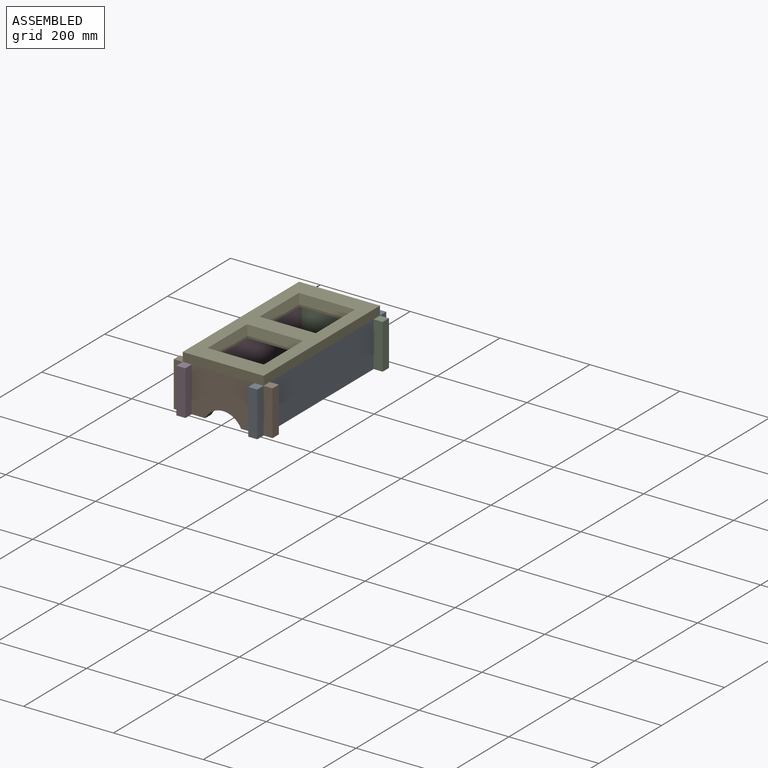
[diagram: assembled view]
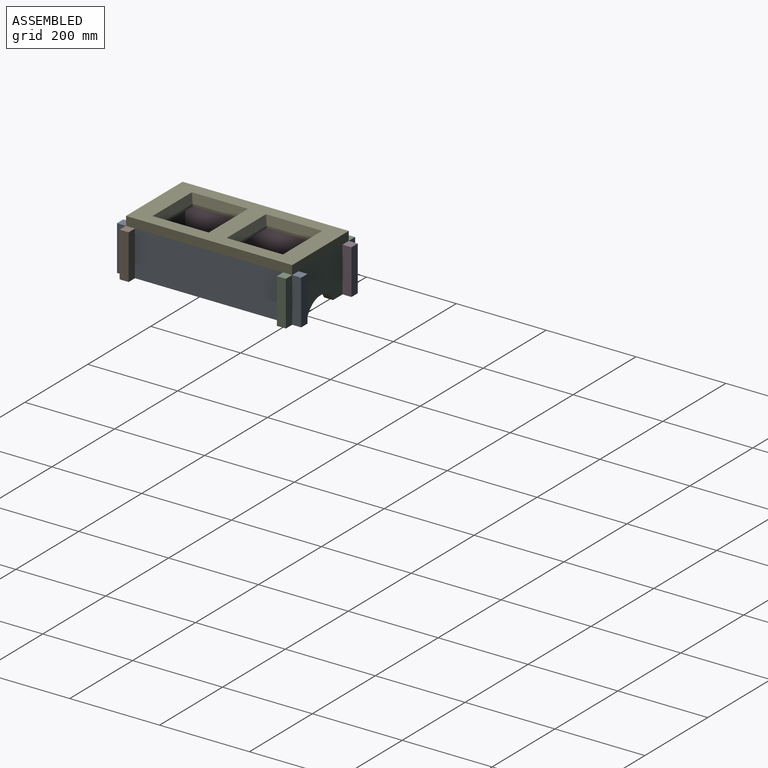
[diagram: assembled view, second angle]
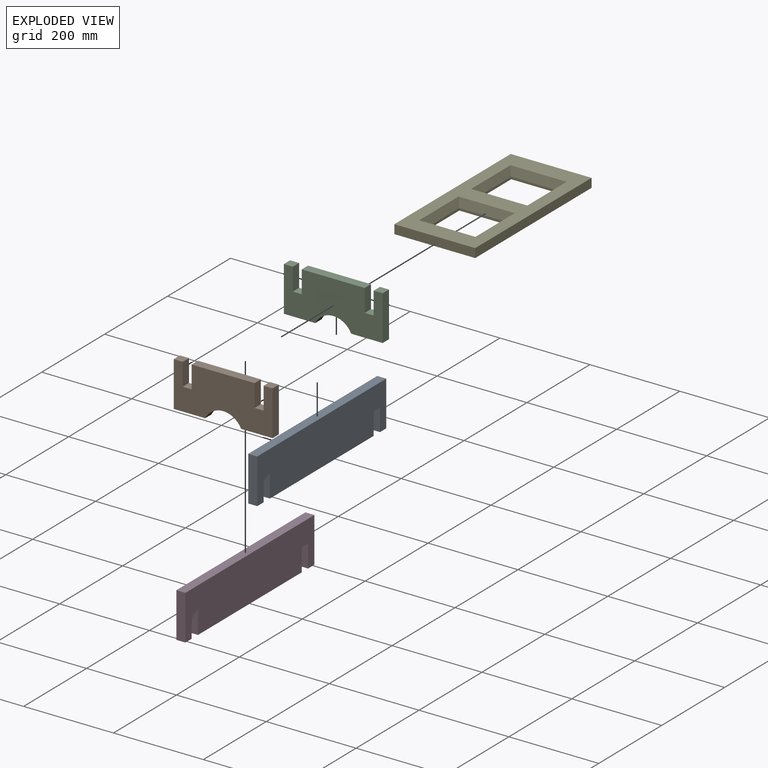
[diagram: exploded view]
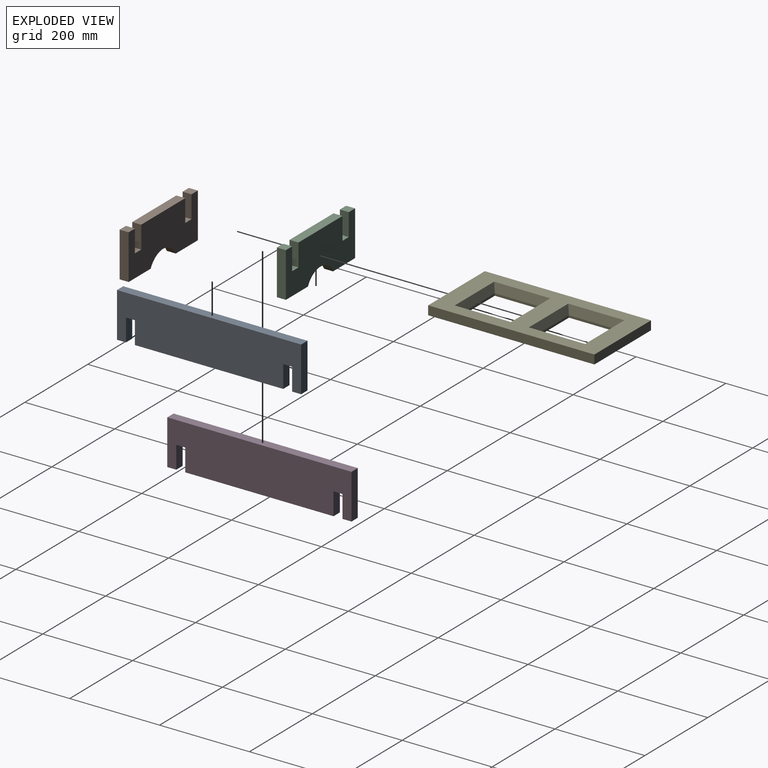
[diagram: exploded view, second angle]
ASSEMBLY  parts=5 mates=4
PART A: 14 faces, bbox 410x20x100 mm
  f0: plane 50x20mm, normal (1,0,0), area 1000mm2, adj f1,f11,f12,f13
  f1: plane 20x20mm, normal (0,0,-1), area 400mm2, adj f0,f2,f12,f13
  f2: plane 50x20mm, normal (-1,0,0), area 1000mm2, adj f1,f3,f12,f13
  f3: plane 330x20mm, normal (0,0,-1), area 6600mm2, adj f2,f4,f12,f13
  f4: plane 50x20mm, normal (1,0,0), area 1000mm2, adj f3,f5,f12,f13
  f5: plane 20x20mm, normal (0,0,-1), area 400mm2, adj f4,f6,f12,f13
  f6: plane 50x20mm, normal (-1,0,0), area 1000mm2, adj f5,f7,f12,f13
  f7: plane 20x20mm, normal (0,0,-1), area 400mm2, adj f6,f8,f12,f13
  f8: plane 100x20mm, normal (1,0,0), area 2000mm2, adj f7,f9,f12,f13
  f9: plane 410x20mm, normal (0,0,1), area 8200mm2, adj f8,f10,f12,f13
  f10: plane 100x20mm, normal (-1,0,0), area 2000mm2, adj f9,f11,f12,f13
  f11: plane 20x20mm, normal (0,0,-1), area 400mm2, adj f0,f10,f12,f13
  f12: plane 410x100mm, normal (0,-1,0), area 39000mm2, adj f0,f1,f2,f3,f4,f5,f6,f7
  f13: plane 410x100mm, normal (0,1,0), area 39000mm2, adj f0,f1,f2,f3,f4,f5,f6,f7
PART B: 16 faces, bbox 220x20x100 mm
  f0: plane 50x20mm, normal (1,0,0), area 1000mm2, adj f1,f13,f14,f15
  f1: plane 20x20mm, normal (0,0,1), area 400mm2, adj f0,f2,f14,f15
  f2: plane 100x20mm, normal (-1,0,0), area 2000mm2, adj f1,f3,f14,f15
  f3: plane 70x20mm, normal (0,0,-1), area 1400mm2, adj f2,f4,f14,f15
  f4: cylinder r=44.5mm len=80mm, axis (0,1,0), area 1988.6mm2, adj f3,f5,f14,f15
  f5: plane 70x20mm, normal (0,0,-1), area 1400mm2, adj f4,f6,f14,f15
  f6: plane 100x20mm, normal (1,0,0), area 2000mm2, adj f5,f7,f14,f15
  f7: plane 20x20mm, normal (0,0,1), area 400mm2, adj f6,f8,f14,f15
  f8: plane 50x20mm, normal (-1,0,0), area 1000mm2, adj f7,f9,f14,f15
  f9: plane 20x20mm, normal (0,0,1), area 400mm2, adj f8,f10,f14,f15
  f10: plane 50x20mm, normal (1,0,0), area 1000mm2, adj f9,f11,f14,f15
  f11: plane 140x20mm, normal (0,0,1), area 2800mm2, adj f10,f12,f14,f15
  f12: plane 50x20mm, normal (-1,0,0), area 1000mm2, adj f11,f13,f14,f15
  f13: plane 20x20mm, normal (0,0,1), area 400mm2, adj f0,f12,f14,f15
  f14: plane 220x100mm, normal (0,-1,0), area 18567.7mm2, adj f0,f1,f2,f3,f4,f5,f6,f7
  f15: plane 220x100mm, normal (0,1,0), area 18567.7mm2, adj f0,f1,f2,f3,f4,f5,f6,f7
PART C: same geometry as B
PART D: same geometry as A
PART E: 29 faces, bbox 370x180x25 mm
  f0: plane 370x180mm, normal (0,0,-1), area 20400mm2, adj f1,f2,f3,f4,f21,f22,f23,f25
  f1: plane 180x20mm, normal (-1,0,0), area 3600mm2, adj f0,f2,f4,f5
  f2: plane 370x20mm, normal (0,-1,0), area 7400mm2, adj f0,f1,f3,f5
  f3: plane 180x20mm, normal (1,0,0), area 3600mm2, adj f0,f2,f4,f5
  f4: plane 370x20mm, normal (0,1,0), area 7400mm2, adj f0,f1,f3,f5
  f5: plane 370x180mm, normal (0,0,1), area 35350mm2, adj f1,f2,f3,f4,f6,f7,f8,f9
  f6: plane 125x20mm, normal (-0.97,0,0.24), area 2473.7mm2, adj f5,f7,f8,f14
  f7: plane 125x20mm, normal (0,-0.97,0.24), area 2473.7mm2, adj f5,f6,f9,f14
  f8: plane 125x20mm, normal (0,0.97,0.24), area 2473.7mm2, adj f5,f6,f9,f14
  f9: plane 125x20mm, normal (0.97,0,0.24), area 2473.7mm2, adj f5,f7,f8,f14
  f10: plane 125x20mm, normal (0,-0.97,0.24), area 2473.7mm2, adj f5,f11,f12,f28
  f11: plane 125x20mm, normal (0.97,0,0.24), area 2473.7mm2, adj f5,f10,f13,f28
  f12: plane 125x20mm, normal (-0.97,0,0.24), area 2473.7mm2, adj f5,f10,f13,f28
  f13: plane 125x20mm, normal (0,0.97,0.24), area 2473.7mm2, adj f5,f11,f12,f28
  f14: plane 115.03x115.03mm, normal (0,0,1), area 6.2mm2, adj f6,f7,f8,f9,f18,f19,f20,f24
  f15: plane 115x5mm, normal (0,1,0), area 575mm2, adj f16,f26,f27,f28
  f16: plane 115x5mm, normal (1,0,0), area 575mm2, adj f15,f17,f27,f28
  f17: plane 115x5mm, normal (0,-1,0), area 575mm2, adj f16,f26,f27,f28
  f18: plane 115x5mm, normal (0,1,0), area 575mm2, adj f14,f19,f24,f27
  f19: plane 115x5mm, normal (1,0,0), area 575mm2, adj f14,f18,f20,f27
  f20: plane 115x5mm, normal (0,-1,0), area 575mm2, adj f14,f19,f24,f27
  f21: plane 140x5mm, normal (-1,0,0), area 700mm2, adj f0,f22,f25,f27
  f22: plane 330x5mm, normal (0,-1,0), area 1650mm2, adj f0,f21,f23,f27
  f23: plane 140x5mm, normal (1,0,0), area 700mm2, adj f0,f22,f25,f27
  f24: plane 115x5mm, normal (-1,0,0), area 575mm2, adj f14,f18,f20,f27
  f25: plane 330x5mm, normal (0,1,0), area 1650mm2, adj f0,f21,f23,f27
  f26: plane 115x5mm, normal (-1,0,0), area 575mm2, adj f15,f17,f27,f28
  f27: plane 330x140mm, normal (0,0,-1), area 19750mm2, adj f15,f16,f17,f18,f19,f20,f21,f22
  f28: plane 115.03x115.03mm, normal (0,0,1), area 6.2mm2, adj f10,f11,f12,f13,f15,f16,f17,f26
PLACE A rot(axis=(0,0,1),90deg) t=(232.65,-18.04,-64.01)mm
PLACE B t=(52.65,21.96,-64.01)mm
PLACE C t=(52.65,371.96,-64.01)mm
PLACE D rot(axis=(0,0,-1),90deg) t=(92.65,391.96,-64.01)mm
PLACE E rot(axis=(0,0,1),90deg) t=(252.65,1.96,35.99)mm
MATE fastened B.f9 <-> A.f1  axis (0,0,1) through (242.65,11.96,-14.01)mm
MATE fastened C.f9 <-> A.f5  axis (0,0,1) through (242.65,361.96,-14.01)mm
MATE fastened E.f23 <-> C.f14  axis (0,1,0) through (162.65,351.96,35.99)mm
MATE fastened B.f13 <-> D.f5  axis (0,0,1) through (82.65,11.96,-14.01)mm
